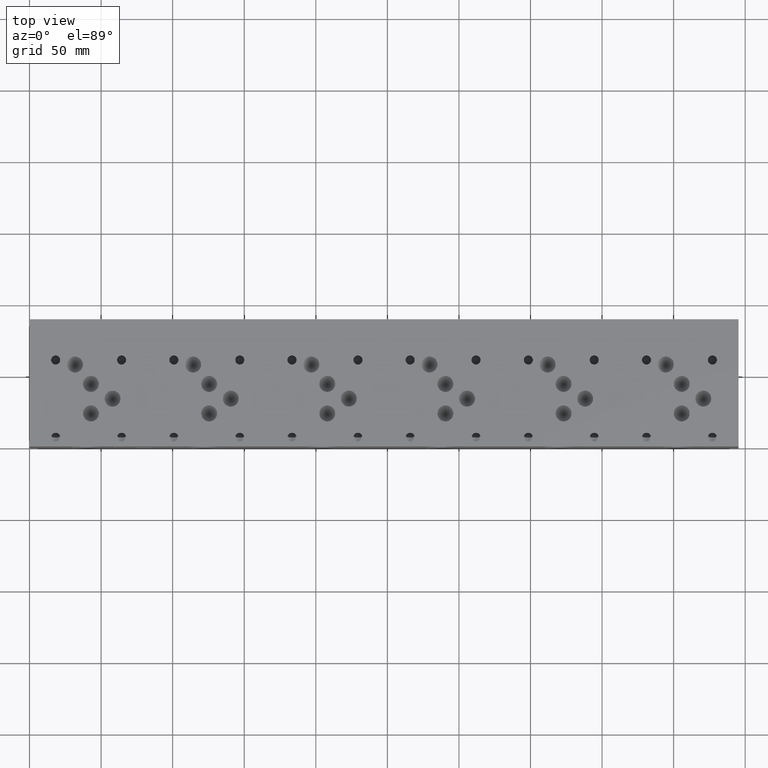
[diagram: clean part render]
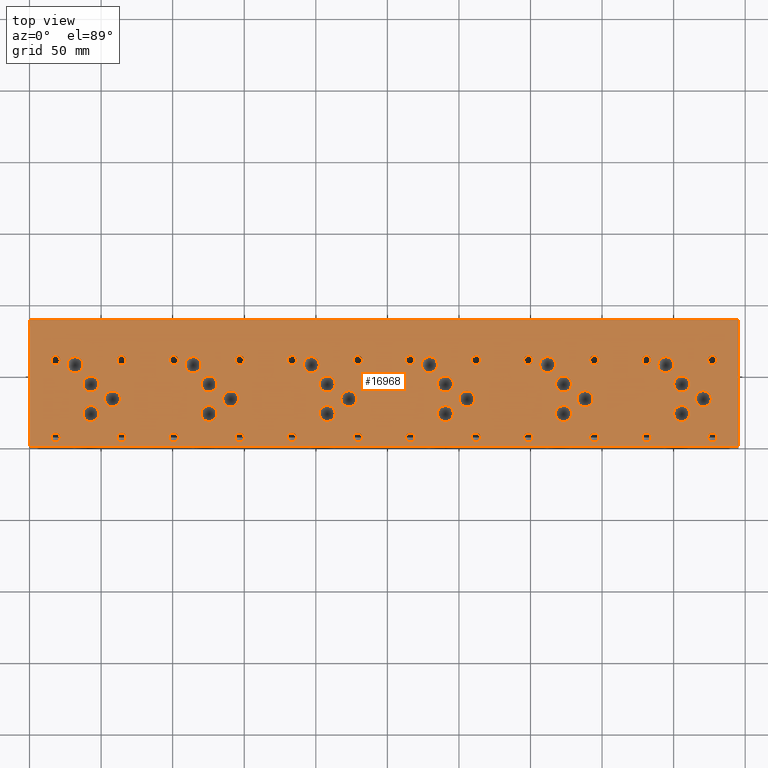
[diagram: same view with one face highlighted and labeled with its STEP entity id]
A machine part, top view. The second image highlights one B-rep face of the part: STEP entity #16968.
In plain terms, the highlighted planar face has unit normal (0, 0, 1).
Its self-contained STEP definition (entity closure, byte-faithful):
#567=CIRCLE('',#17641,5.5626);
#568=CIRCLE('',#17642,5.5626);
#571=CIRCLE('',#17647,5.5626);
#572=CIRCLE('',#17648,5.5626);
#575=CIRCLE('',#17653,5.5626);
#576=CIRCLE('',#17654,5.5626);
#579=CIRCLE('',#17659,5.5626);
#580=CIRCLE('',#17660,5.5626);
#583=CIRCLE('',#17665,5.5626);
#584=CIRCLE('',#17666,5.5626);
#587=CIRCLE('',#17671,5.5626);
#588=CIRCLE('',#17672,5.5626);
#591=CIRCLE('',#17677,5.5626);
#592=CIRCLE('',#17678,5.5626);
#595=CIRCLE('',#17683,5.5626);
#596=CIRCLE('',#17684,5.5626);
#599=CIRCLE('',#17689,5.5626);
#600=CIRCLE('',#17690,5.5626);
#603=CIRCLE('',#17695,5.5626);
#604=CIRCLE('',#17696,5.5626);
#607=CIRCLE('',#17701,5.5626);
#608=CIRCLE('',#17702,5.5626);
#611=CIRCLE('',#17707,5.5626);
#612=CIRCLE('',#17708,5.5626);
#615=CIRCLE('',#17713,5.5626);
#616=CIRCLE('',#17714,5.5626);
#619=CIRCLE('',#17719,5.5626);
#620=CIRCLE('',#17720,5.5626);
#623=CIRCLE('',#17725,5.5626);
#624=CIRCLE('',#17726,5.5626);
#627=CIRCLE('',#17731,5.5626);
#628=CIRCLE('',#17732,5.5626);
#631=CIRCLE('',#17737,5.5626);
#632=CIRCLE('',#17738,5.5626);
#635=CIRCLE('',#17743,5.5626);
#636=CIRCLE('',#17744,5.5626);
#639=CIRCLE('',#17749,5.5626);
#640=CIRCLE('',#17750,5.5626);
#643=CIRCLE('',#17755,5.5626);
#644=CIRCLE('',#17756,5.5626);
#647=CIRCLE('',#17761,5.5626);
#648=CIRCLE('',#17762,5.5626);
#651=CIRCLE('',#17767,5.5626);
#652=CIRCLE('',#17768,5.5626);
#655=CIRCLE('',#17773,5.5626);
#656=CIRCLE('',#17774,5.5626);
#659=CIRCLE('',#17779,5.5626);
#660=CIRCLE('',#17780,5.5626);
#666=CIRCLE('',#17789,3.175);
#667=CIRCLE('',#17790,3.175);
#673=CIRCLE('',#17800,3.175);
#674=CIRCLE('',#17801,3.175);
#680=CIRCLE('',#17811,3.175);
#681=CIRCLE('',#17812,3.175);
#687=CIRCLE('',#17822,3.175);
#688=CIRCLE('',#17823,3.175);
#694=CIRCLE('',#17833,3.175);
#695=CIRCLE('',#17834,3.175);
#701=CIRCLE('',#17844,3.175);
#702=CIRCLE('',#17845,3.175);
#708=CIRCLE('',#17855,3.175);
#709=CIRCLE('',#17856,3.175);
#715=CIRCLE('',#17866,3.175);
#716=CIRCLE('',#17867,3.175);
#722=CIRCLE('',#17877,3.175);
#723=CIRCLE('',#17878,3.175);
#729=CIRCLE('',#17888,3.175);
#730=CIRCLE('',#17889,3.175);
#736=CIRCLE('',#17899,3.175);
#737=CIRCLE('',#17900,3.175);
#743=CIRCLE('',#17910,3.175);
#744=CIRCLE('',#17911,3.175);
#750=CIRCLE('',#17921,3.175);
#751=CIRCLE('',#17922,3.175);
#757=CIRCLE('',#17932,3.175);
#758=CIRCLE('',#17933,3.175);
#764=CIRCLE('',#17943,3.175);
#765=CIRCLE('',#17944,3.175);
#771=CIRCLE('',#17954,3.175);
#772=CIRCLE('',#17955,3.175);
#778=CIRCLE('',#17965,3.175);
#779=CIRCLE('',#17966,3.175);
#785=CIRCLE('',#17976,3.175);
#786=CIRCLE('',#17977,3.175);
#792=CIRCLE('',#17987,3.175);
#793=CIRCLE('',#17988,3.175);
#799=CIRCLE('',#17998,3.175);
#800=CIRCLE('',#17999,3.175);
#806=CIRCLE('',#18009,3.175);
#807=CIRCLE('',#18010,3.175);
#813=CIRCLE('',#18020,3.175);
#814=CIRCLE('',#18021,3.175);
#820=CIRCLE('',#18031,3.175);
#821=CIRCLE('',#18032,3.175);
#827=CIRCLE('',#18042,3.175);
#828=CIRCLE('',#18043,3.175);
#1403=FACE_BOUND('',#3336,.T.);
#1404=FACE_BOUND('',#3337,.T.);
#1405=FACE_BOUND('',#3338,.T.);
#1406=FACE_BOUND('',#3339,.T.);
#1407=FACE_BOUND('',#3340,.T.);
#1408=FACE_BOUND('',#3341,.T.);
#1409=FACE_BOUND('',#3342,.T.);
#1410=FACE_BOUND('',#3343,.T.);
#1411=FACE_BOUND('',#3344,.T.);
#1412=FACE_BOUND('',#3345,.T.);
#1413=FACE_BOUND('',#3346,.T.);
#1414=FACE_BOUND('',#3347,.T.);
#1415=FACE_BOUND('',#3348,.T.);
#1416=FACE_BOUND('',#3349,.T.);
#1417=FACE_BOUND('',#3350,.T.);
#1418=FACE_BOUND('',#3351,.T.);
#1419=FACE_BOUND('',#3352,.T.);
#1420=FACE_BOUND('',#3353,.T.);
#1421=FACE_BOUND('',#3354,.T.);
#1422=FACE_BOUND('',#3355,.T.);
#1423=FACE_BOUND('',#3356,.T.);
#1424=FACE_BOUND('',#3357,.T.);
#1425=FACE_BOUND('',#3358,.T.);
#1426=FACE_BOUND('',#3359,.T.);
#1427=FACE_BOUND('',#3360,.T.);
#1428=FACE_BOUND('',#3361,.T.);
#1429=FACE_BOUND('',#3362,.T.);
#1430=FACE_BOUND('',#3363,.T.);
#1431=FACE_BOUND('',#3364,.T.);
#1432=FACE_BOUND('',#3365,.T.);
#1433=FACE_BOUND('',#3366,.T.);
#1434=FACE_BOUND('',#3367,.T.);
#1435=FACE_BOUND('',#3368,.T.);
#1436=FACE_BOUND('',#3369,.T.);
#1437=FACE_BOUND('',#3370,.T.);
#1438=FACE_BOUND('',#3371,.T.);
#1439=FACE_BOUND('',#3372,.T.);
#1440=FACE_BOUND('',#3373,.T.);
#1441=FACE_BOUND('',#3374,.T.);
#1442=FACE_BOUND('',#3375,.T.);
#1443=FACE_BOUND('',#3376,.T.);
#1444=FACE_BOUND('',#3377,.T.);
#1445=FACE_BOUND('',#3378,.T.);
#1446=FACE_BOUND('',#3379,.T.);
#1447=FACE_BOUND('',#3380,.T.);
#1448=FACE_BOUND('',#3381,.T.);
#1449=FACE_BOUND('',#3382,.T.);
#1450=FACE_BOUND('',#3383,.T.);
#2326=FACE_OUTER_BOUND('',#3335,.T.);
#3335=EDGE_LOOP('',(#14902,#14903,#14904,#14905));
#3336=EDGE_LOOP('',(#14906,#14907));
#3337=EDGE_LOOP('',(#14908,#14909));
#3338=EDGE_LOOP('',(#14910,#14911));
#3339=EDGE_LOOP('',(#14912,#14913));
#3340=EDGE_LOOP('',(#14914,#14915));
#3341=EDGE_LOOP('',(#14916,#14917));
#3342=EDGE_LOOP('',(#14918,#14919));
#3343=EDGE_LOOP('',(#14920,#14921));
#3344=EDGE_LOOP('',(#14922,#14923));
#3345=EDGE_LOOP('',(#14924,#14925));
#3346=EDGE_LOOP('',(#14926,#14927));
#3347=EDGE_LOOP('',(#14928,#14929));
#3348=EDGE_LOOP('',(#14930,#14931));
#3349=EDGE_LOOP('',(#14932,#14933));
#3350=EDGE_LOOP('',(#14934,#14935));
#3351=EDGE_LOOP('',(#14936,#14937));
#3352=EDGE_LOOP('',(#14938,#14939));
#3353=EDGE_LOOP('',(#14940,#14941));
#3354=EDGE_LOOP('',(#14942,#14943));
#3355=EDGE_LOOP('',(#14944,#14945));
#3356=EDGE_LOOP('',(#14946,#14947));
#3357=EDGE_LOOP('',(#14948,#14949));
#3358=EDGE_LOOP('',(#14950,#14951));
#3359=EDGE_LOOP('',(#14952,#14953));
#3360=EDGE_LOOP('',(#14954,#14955));
#3361=EDGE_LOOP('',(#14956,#14957));
#3362=EDGE_LOOP('',(#14958,#14959));
#3363=EDGE_LOOP('',(#14960,#14961));
#3364=EDGE_LOOP('',(#14962,#14963));
#3365=EDGE_LOOP('',(#14964,#14965));
#3366=EDGE_LOOP('',(#14966,#14967));
#3367=EDGE_LOOP('',(#14968,#14969));
#3368=EDGE_LOOP('',(#14970,#14971));
#3369=EDGE_LOOP('',(#14972,#14973));
#3370=EDGE_LOOP('',(#14974,#14975));
#3371=EDGE_LOOP('',(#14976,#14977));
#3372=EDGE_LOOP('',(#14978,#14979));
#3373=EDGE_LOOP('',(#14980,#14981));
#3374=EDGE_LOOP('',(#14982,#14983));
#3375=EDGE_LOOP('',(#14984,#14985));
#3376=EDGE_LOOP('',(#14986,#14987));
#3377=EDGE_LOOP('',(#14988,#14989));
#3378=EDGE_LOOP('',(#14990,#14991));
#3379=EDGE_LOOP('',(#14992,#14993));
#3380=EDGE_LOOP('',(#14994,#14995));
#3381=EDGE_LOOP('',(#14996,#14997));
#3382=EDGE_LOOP('',(#14998,#14999));
#3383=EDGE_LOOP('',(#15000,#15001));
#3420=LINE('',#21746,#4904);
#4534=LINE('',#27493,#6018);
#4594=LINE('',#27766,#6078);
#4868=LINE('',#29396,#6352);
#4904=VECTOR('',#18114,10.);
#6018=VECTOR('',#19990,10.);
#6078=VECTOR('',#20104,10.);
#6352=VECTOR('',#21662,10.);
#6377=VERTEX_POINT('',#21743);
#6378=VERTEX_POINT('',#21745);
#7422=VERTEX_POINT('',#27492);
#7480=VERTEX_POINT('',#27764);
#7686=VERTEX_POINT('',#28561);
#7687=VERTEX_POINT('',#28562);
#7691=VERTEX_POINT('',#28574);
#7692=VERTEX_POINT('',#28575);
#7696=VERTEX_POINT('',#28587);
#7697=VERTEX_POINT('',#28588);
#7701=VERTEX_POINT('',#28600);
#7702=VERTEX_POINT('',#28601);
#7706=VERTEX_POINT('',#28613);
#7707=VERTEX_POINT('',#28614);
#7711=VERTEX_POINT('',#28626);
#7712=VERTEX_POINT('',#28627);
#7716=VERTEX_POINT('',#28639);
#7717=VERTEX_POINT('',#28640);
#7721=VERTEX_POINT('',#28652);
#7722=VERTEX_POINT('',#28653);
#7726=VERTEX_POINT('',#28665);
#7727=VERTEX_POINT('',#28666);
#7731=VERTEX_POINT('',#28678);
#7732=VERTEX_POINT('',#28679);
#7736=VERTEX_POINT('',#28691);
#7737=VERTEX_POINT('',#28692);
#7741=VERTEX_POINT('',#28704);
#7742=VERTEX_POINT('',#28705);
#7746=VERTEX_POINT('',#28717);
#7747=VERTEX_POINT('',#28718);
#7751=VERTEX_POINT('',#28730);
#7752=VERTEX_POINT('',#28731);
#7756=VERTEX_POINT('',#28743);
#7757=VERTEX_POINT('',#28744);
#7761=VERTEX_POINT('',#28756);
#7762=VERTEX_POINT('',#28757);
#7766=VERTEX_POINT('',#28769);
#7767=VERTEX_POINT('',#28770);
#7771=VERTEX_POINT('',#28782);
#7772=VERTEX_POINT('',#28783);
#7776=VERTEX_POINT('',#28795);
#7777=VERTEX_POINT('',#28796);
#7781=VERTEX_POINT('',#28808);
#7782=VERTEX_POINT('',#28809);
#7786=VERTEX_POINT('',#28821);
#7787=VERTEX_POINT('',#28822);
#7791=VERTEX_POINT('',#28834);
#7792=VERTEX_POINT('',#28835);
#7796=VERTEX_POINT('',#28847);
#7797=VERTEX_POINT('',#28848);
#7801=VERTEX_POINT('',#28860);
#7802=VERTEX_POINT('',#28861);
#7809=VERTEX_POINT('',#28880);
#7810=VERTEX_POINT('',#28881);
#7817=VERTEX_POINT('',#28902);
#7818=VERTEX_POINT('',#28903);
#7825=VERTEX_POINT('',#28924);
#7826=VERTEX_POINT('',#28925);
#7833=VERTEX_POINT('',#28946);
#7834=VERTEX_POINT('',#28947);
#7841=VERTEX_POINT('',#28968);
#7842=VERTEX_POINT('',#28969);
#7849=VERTEX_POINT('',#28990);
#7850=VERTEX_POINT('',#28991);
#7857=VERTEX_POINT('',#29012);
#7858=VERTEX_POINT('',#29013);
#7865=VERTEX_POINT('',#29034);
#7866=VERTEX_POINT('',#29035);
#7873=VERTEX_POINT('',#29056);
#7874=VERTEX_POINT('',#29057);
#7881=VERTEX_POINT('',#29078);
#7882=VERTEX_POINT('',#29079);
#7889=VERTEX_POINT('',#29100);
#7890=VERTEX_POINT('',#29101);
#7897=VERTEX_POINT('',#29122);
#7898=VERTEX_POINT('',#29123);
#7905=VERTEX_POINT('',#29144);
#7906=VERTEX_POINT('',#29145);
#7913=VERTEX_POINT('',#29166);
#7914=VERTEX_POINT('',#29167);
#7921=VERTEX_POINT('',#29188);
#7922=VERTEX_POINT('',#29189);
#7929=VERTEX_POINT('',#29210);
#7930=VERTEX_POINT('',#29211);
#7937=VERTEX_POINT('',#29232);
#7938=VERTEX_POINT('',#29233);
#7945=VERTEX_POINT('',#29254);
#7946=VERTEX_POINT('',#29255);
#7953=VERTEX_POINT('',#29276);
#7954=VERTEX_POINT('',#29277);
#7961=VERTEX_POINT('',#29298);
#7962=VERTEX_POINT('',#29299);
#7969=VERTEX_POINT('',#29320);
#7970=VERTEX_POINT('',#29321);
#7977=VERTEX_POINT('',#29342);
#7978=VERTEX_POINT('',#29343);
#7985=VERTEX_POINT('',#29364);
#7986=VERTEX_POINT('',#29365);
#7993=VERTEX_POINT('',#29386);
#7994=VERTEX_POINT('',#29387);
#8030=EDGE_CURVE('',#6378,#6377,#3420,.T.);
#9574=EDGE_CURVE('',#7422,#6378,#4534,.T.);
#9658=EDGE_CURVE('',#6377,#7480,#4594,.T.);
#9949=EDGE_CURVE('',#7686,#7687,#567,.T.);
#9950=EDGE_CURVE('',#7687,#7686,#568,.T.);
#9955=EDGE_CURVE('',#7691,#7692,#571,.T.);
#9956=EDGE_CURVE('',#7692,#7691,#572,.T.);
#9961=EDGE_CURVE('',#7696,#7697,#575,.T.);
#9962=EDGE_CURVE('',#7697,#7696,#576,.T.);
#9967=EDGE_CURVE('',#7701,#7702,#579,.T.);
#9968=EDGE_CURVE('',#7702,#7701,#580,.T.);
#9973=EDGE_CURVE('',#7706,#7707,#583,.T.);
#9974=EDGE_CURVE('',#7707,#7706,#584,.T.);
#9979=EDGE_CURVE('',#7711,#7712,#587,.T.);
#9980=EDGE_CURVE('',#7712,#7711,#588,.T.);
#9985=EDGE_CURVE('',#7716,#7717,#591,.T.);
#9986=EDGE_CURVE('',#7717,#7716,#592,.T.);
#9991=EDGE_CURVE('',#7721,#7722,#595,.T.);
#9992=EDGE_CURVE('',#7722,#7721,#596,.T.);
#9997=EDGE_CURVE('',#7726,#7727,#599,.T.);
#9998=EDGE_CURVE('',#7727,#7726,#600,.T.);
#10003=EDGE_CURVE('',#7731,#7732,#603,.T.);
#10004=EDGE_CURVE('',#7732,#7731,#604,.T.);
#10009=EDGE_CURVE('',#7736,#7737,#607,.T.);
#10010=EDGE_CURVE('',#7737,#7736,#608,.T.);
#10015=EDGE_CURVE('',#7741,#7742,#611,.T.);
#10016=EDGE_CURVE('',#7742,#7741,#612,.T.);
#10021=EDGE_CURVE('',#7746,#7747,#615,.T.);
#10022=EDGE_CURVE('',#7747,#7746,#616,.T.);
#10027=EDGE_CURVE('',#7751,#7752,#619,.T.);
#10028=EDGE_CURVE('',#7752,#7751,#620,.T.);
#10033=EDGE_CURVE('',#7756,#7757,#623,.T.);
#10034=EDGE_CURVE('',#7757,#7756,#624,.T.);
#10039=EDGE_CURVE('',#7761,#7762,#627,.T.);
#10040=EDGE_CURVE('',#7762,#7761,#628,.T.);
#10045=EDGE_CURVE('',#7766,#7767,#631,.T.);
#10046=EDGE_CURVE('',#7767,#7766,#632,.T.);
#10051=EDGE_CURVE('',#7771,#7772,#635,.T.);
#10052=EDGE_CURVE('',#7772,#7771,#636,.T.);
#10057=EDGE_CURVE('',#7776,#7777,#639,.T.);
#10058=EDGE_CURVE('',#7777,#7776,#640,.T.);
#10063=EDGE_CURVE('',#7781,#7782,#643,.T.);
#10064=EDGE_CURVE('',#7782,#7781,#644,.T.);
#10069=EDGE_CURVE('',#7786,#7787,#647,.T.);
#10070=EDGE_CURVE('',#7787,#7786,#648,.T.);
#10075=EDGE_CURVE('',#7791,#7792,#651,.T.);
#10076=EDGE_CURVE('',#7792,#7791,#652,.T.);
#10081=EDGE_CURVE('',#7796,#7797,#655,.T.);
#10082=EDGE_CURVE('',#7797,#7796,#656,.T.);
#10087=EDGE_CURVE('',#7801,#7802,#659,.T.);
#10088=EDGE_CURVE('',#7802,#7801,#660,.T.);
#10096=EDGE_CURVE('',#7809,#7810,#666,.T.);
#10097=EDGE_CURVE('',#7810,#7809,#667,.T.);
#10106=EDGE_CURVE('',#7817,#7818,#673,.T.);
#10107=EDGE_CURVE('',#7818,#7817,#674,.T.);
#10116=EDGE_CURVE('',#7825,#7826,#680,.T.);
#10117=EDGE_CURVE('',#7826,#7825,#681,.T.);
#10126=EDGE_CURVE('',#7833,#7834,#687,.T.);
#10127=EDGE_CURVE('',#7834,#7833,#688,.T.);
#10136=EDGE_CURVE('',#7841,#7842,#694,.T.);
#10137=EDGE_CURVE('',#7842,#7841,#695,.T.);
#10146=EDGE_CURVE('',#7849,#7850,#701,.T.);
#10147=EDGE_CURVE('',#7850,#7849,#702,.T.);
#10156=EDGE_CURVE('',#7857,#7858,#708,.T.);
#10157=EDGE_CURVE('',#7858,#7857,#709,.T.);
#10166=EDGE_CURVE('',#7865,#7866,#715,.T.);
#10167=EDGE_CURVE('',#7866,#7865,#716,.T.);
#10176=EDGE_CURVE('',#7873,#7874,#722,.T.);
#10177=EDGE_CURVE('',#7874,#7873,#723,.T.);
#10186=EDGE_CURVE('',#7881,#7882,#729,.T.);
#10187=EDGE_CURVE('',#7882,#7881,#730,.T.);
#10196=EDGE_CURVE('',#7889,#7890,#736,.T.);
#10197=EDGE_CURVE('',#7890,#7889,#737,.T.);
#10206=EDGE_CURVE('',#7897,#7898,#743,.T.);
#10207=EDGE_CURVE('',#7898,#7897,#744,.T.);
#10216=EDGE_CURVE('',#7905,#7906,#750,.T.);
#10217=EDGE_CURVE('',#7906,#7905,#751,.T.);
#10226=EDGE_CURVE('',#7913,#7914,#757,.T.);
#10227=EDGE_CURVE('',#7914,#7913,#758,.T.);
#10236=EDGE_CURVE('',#7921,#7922,#764,.T.);
#10237=EDGE_CURVE('',#7922,#7921,#765,.T.);
#10246=EDGE_CURVE('',#7929,#7930,#771,.T.);
#10247=EDGE_CURVE('',#7930,#7929,#772,.T.);
#10256=EDGE_CURVE('',#7937,#7938,#778,.T.);
#10257=EDGE_CURVE('',#7938,#7937,#779,.T.);
#10266=EDGE_CURVE('',#7945,#7946,#785,.T.);
#10267=EDGE_CURVE('',#7946,#7945,#786,.T.);
#10276=EDGE_CURVE('',#7953,#7954,#792,.T.);
#10277=EDGE_CURVE('',#7954,#7953,#793,.T.);
#10286=EDGE_CURVE('',#7961,#7962,#799,.T.);
#10287=EDGE_CURVE('',#7962,#7961,#800,.T.);
#10296=EDGE_CURVE('',#7969,#7970,#806,.T.);
#10297=EDGE_CURVE('',#7970,#7969,#807,.T.);
#10306=EDGE_CURVE('',#7977,#7978,#813,.T.);
#10307=EDGE_CURVE('',#7978,#7977,#814,.T.);
#10316=EDGE_CURVE('',#7985,#7986,#820,.T.);
#10317=EDGE_CURVE('',#7986,#7985,#821,.T.);
#10326=EDGE_CURVE('',#7993,#7994,#827,.T.);
#10327=EDGE_CURVE('',#7994,#7993,#828,.T.);
#10331=EDGE_CURVE('',#7480,#7422,#4868,.T.);
#14902=ORIENTED_EDGE('',*,*,#8030,.T.);
#14903=ORIENTED_EDGE('',*,*,#9658,.T.);
#14904=ORIENTED_EDGE('',*,*,#10331,.T.);
#14905=ORIENTED_EDGE('',*,*,#9574,.T.);
#14906=ORIENTED_EDGE('',*,*,#9949,.T.);
#14907=ORIENTED_EDGE('',*,*,#9950,.T.);
#14908=ORIENTED_EDGE('',*,*,#9955,.T.);
#14909=ORIENTED_EDGE('',*,*,#9956,.T.);
#14910=ORIENTED_EDGE('',*,*,#9961,.T.);
#14911=ORIENTED_EDGE('',*,*,#9962,.T.);
#14912=ORIENTED_EDGE('',*,*,#9967,.T.);
#14913=ORIENTED_EDGE('',*,*,#9968,.T.);
#14914=ORIENTED_EDGE('',*,*,#9973,.T.);
#14915=ORIENTED_EDGE('',*,*,#9974,.T.);
#14916=ORIENTED_EDGE('',*,*,#9979,.T.);
#14917=ORIENTED_EDGE('',*,*,#9980,.T.);
#14918=ORIENTED_EDGE('',*,*,#9985,.T.);
#14919=ORIENTED_EDGE('',*,*,#9986,.T.);
#14920=ORIENTED_EDGE('',*,*,#9991,.T.);
#14921=ORIENTED_EDGE('',*,*,#9992,.T.);
#14922=ORIENTED_EDGE('',*,*,#9997,.T.);
#14923=ORIENTED_EDGE('',*,*,#9998,.T.);
#14924=ORIENTED_EDGE('',*,*,#10003,.T.);
#14925=ORIENTED_EDGE('',*,*,#10004,.T.);
#14926=ORIENTED_EDGE('',*,*,#10009,.T.);
#14927=ORIENTED_EDGE('',*,*,#10010,.T.);
#14928=ORIENTED_EDGE('',*,*,#10015,.T.);
#14929=ORIENTED_EDGE('',*,*,#10016,.T.);
#14930=ORIENTED_EDGE('',*,*,#10021,.T.);
#14931=ORIENTED_EDGE('',*,*,#10022,.T.);
#14932=ORIENTED_EDGE('',*,*,#10027,.T.);
#14933=ORIENTED_EDGE('',*,*,#10028,.T.);
#14934=ORIENTED_EDGE('',*,*,#10033,.T.);
#14935=ORIENTED_EDGE('',*,*,#10034,.T.);
#14936=ORIENTED_EDGE('',*,*,#10039,.T.);
#14937=ORIENTED_EDGE('',*,*,#10040,.T.);
#14938=ORIENTED_EDGE('',*,*,#10045,.T.);
#14939=ORIENTED_EDGE('',*,*,#10046,.T.);
#14940=ORIENTED_EDGE('',*,*,#10051,.T.);
#14941=ORIENTED_EDGE('',*,*,#10052,.T.);
#14942=ORIENTED_EDGE('',*,*,#10057,.T.);
#14943=ORIENTED_EDGE('',*,*,#10058,.T.);
#14944=ORIENTED_EDGE('',*,*,#10063,.T.);
#14945=ORIENTED_EDGE('',*,*,#10064,.T.);
#14946=ORIENTED_EDGE('',*,*,#10069,.T.);
#14947=ORIENTED_EDGE('',*,*,#10070,.T.);
#14948=ORIENTED_EDGE('',*,*,#10075,.T.);
#14949=ORIENTED_EDGE('',*,*,#10076,.T.);
#14950=ORIENTED_EDGE('',*,*,#10081,.T.);
#14951=ORIENTED_EDGE('',*,*,#10082,.T.);
#14952=ORIENTED_EDGE('',*,*,#10087,.T.);
#14953=ORIENTED_EDGE('',*,*,#10088,.T.);
#14954=ORIENTED_EDGE('',*,*,#10096,.T.);
#14955=ORIENTED_EDGE('',*,*,#10097,.T.);
#14956=ORIENTED_EDGE('',*,*,#10106,.T.);
#14957=ORIENTED_EDGE('',*,*,#10107,.T.);
#14958=ORIENTED_EDGE('',*,*,#10116,.T.);
#14959=ORIENTED_EDGE('',*,*,#10117,.T.);
#14960=ORIENTED_EDGE('',*,*,#10126,.T.);
#14961=ORIENTED_EDGE('',*,*,#10127,.T.);
#14962=ORIENTED_EDGE('',*,*,#10136,.T.);
#14963=ORIENTED_EDGE('',*,*,#10137,.T.);
#14964=ORIENTED_EDGE('',*,*,#10146,.T.);
#14965=ORIENTED_EDGE('',*,*,#10147,.T.);
#14966=ORIENTED_EDGE('',*,*,#10156,.T.);
#14967=ORIENTED_EDGE('',*,*,#10157,.T.);
#14968=ORIENTED_EDGE('',*,*,#10166,.T.);
#14969=ORIENTED_EDGE('',*,*,#10167,.T.);
#14970=ORIENTED_EDGE('',*,*,#10176,.T.);
#14971=ORIENTED_EDGE('',*,*,#10177,.T.);
#14972=ORIENTED_EDGE('',*,*,#10186,.T.);
#14973=ORIENTED_EDGE('',*,*,#10187,.T.);
#14974=ORIENTED_EDGE('',*,*,#10196,.T.);
#14975=ORIENTED_EDGE('',*,*,#10197,.T.);
#14976=ORIENTED_EDGE('',*,*,#10206,.T.);
#14977=ORIENTED_EDGE('',*,*,#10207,.T.);
#14978=ORIENTED_EDGE('',*,*,#10216,.T.);
#14979=ORIENTED_EDGE('',*,*,#10217,.T.);
#14980=ORIENTED_EDGE('',*,*,#10226,.T.);
#14981=ORIENTED_EDGE('',*,*,#10227,.T.);
#14982=ORIENTED_EDGE('',*,*,#10236,.T.);
#14983=ORIENTED_EDGE('',*,*,#10237,.T.);
#14984=ORIENTED_EDGE('',*,*,#10246,.T.);
#14985=ORIENTED_EDGE('',*,*,#10247,.T.);
#14986=ORIENTED_EDGE('',*,*,#10256,.T.);
#14987=ORIENTED_EDGE('',*,*,#10257,.T.);
#14988=ORIENTED_EDGE('',*,*,#10266,.T.);
#14989=ORIENTED_EDGE('',*,*,#10267,.T.);
#14990=ORIENTED_EDGE('',*,*,#10276,.T.);
#14991=ORIENTED_EDGE('',*,*,#10277,.T.);
#14992=ORIENTED_EDGE('',*,*,#10286,.T.);
#14993=ORIENTED_EDGE('',*,*,#10287,.T.);
#14994=ORIENTED_EDGE('',*,*,#10296,.T.);
#14995=ORIENTED_EDGE('',*,*,#10297,.T.);
#14996=ORIENTED_EDGE('',*,*,#10306,.T.);
#14997=ORIENTED_EDGE('',*,*,#10307,.T.);
#14998=ORIENTED_EDGE('',*,*,#10316,.T.);
#14999=ORIENTED_EDGE('',*,*,#10317,.T.);
#15000=ORIENTED_EDGE('',*,*,#10326,.T.);
#15001=ORIENTED_EDGE('',*,*,#10327,.T.);
#15477=PLANE('',#18049);
#16968=ADVANCED_FACE('',(#2326,#1403,#1404,#1405,#1406,#1407,#1408,#1409,
#1410,#1411,#1412,#1413,#1414,#1415,#1416,#1417,#1418,#1419,#1420,#1421,
#1422,#1423,#1424,#1425,#1426,#1427,#1428,#1429,#1430,#1431,#1432,#1433,
#1434,#1435,#1436,#1437,#1438,#1439,#1440,#1441,#1442,#1443,#1444,#1445,
#1446,#1447,#1448,#1449,#1450),#15477,.T.);
#17641=AXIS2_PLACEMENT_3D('',#28563,#20730,#20731);
#17642=AXIS2_PLACEMENT_3D('',#28564,#20732,#20733);
#17647=AXIS2_PLACEMENT_3D('',#28576,#20744,#20745);
#17648=AXIS2_PLACEMENT_3D('',#28577,#20746,#20747);
#17653=AXIS2_PLACEMENT_3D('',#28589,#20758,#20759);
#17654=AXIS2_PLACEMENT_3D('',#28590,#20760,#20761);
#17659=AXIS2_PLACEMENT_3D('',#28602,#20772,#20773);
#17660=AXIS2_PLACEMENT_3D('',#28603,#20774,#20775);
#17665=AXIS2_PLACEMENT_3D('',#28615,#20786,#20787);
#17666=AXIS2_PLACEMENT_3D('',#28616,#20788,#20789);
#17671=AXIS2_PLACEMENT_3D('',#28628,#20800,#20801);
#17672=AXIS2_PLACEMENT_3D('',#28629,#20802,#20803);
#17677=AXIS2_PLACEMENT_3D('',#28641,#20814,#20815);
#17678=AXIS2_PLACEMENT_3D('',#28642,#20816,#20817);
#17683=AXIS2_PLACEMENT_3D('',#28654,#20828,#20829);
#17684=AXIS2_PLACEMENT_3D('',#28655,#20830,#20831);
#17689=AXIS2_PLACEMENT_3D('',#28667,#20842,#20843);
#17690=AXIS2_PLACEMENT_3D('',#28668,#20844,#20845);
#17695=AXIS2_PLACEMENT_3D('',#28680,#20856,#20857);
#17696=AXIS2_PLACEMENT_3D('',#28681,#20858,#20859);
#17701=AXIS2_PLACEMENT_3D('',#28693,#20870,#20871);
#17702=AXIS2_PLACEMENT_3D('',#28694,#20872,#20873);
#17707=AXIS2_PLACEMENT_3D('',#28706,#20884,#20885);
#17708=AXIS2_PLACEMENT_3D('',#28707,#20886,#20887);
#17713=AXIS2_PLACEMENT_3D('',#28719,#20898,#20899);
#17714=AXIS2_PLACEMENT_3D('',#28720,#20900,#20901);
#17719=AXIS2_PLACEMENT_3D('',#28732,#20912,#20913);
#17720=AXIS2_PLACEMENT_3D('',#28733,#20914,#20915);
#17725=AXIS2_PLACEMENT_3D('',#28745,#20926,#20927);
#17726=AXIS2_PLACEMENT_3D('',#28746,#20928,#20929);
#17731=AXIS2_PLACEMENT_3D('',#28758,#20940,#20941);
#17732=AXIS2_PLACEMENT_3D('',#28759,#20942,#20943);
#17737=AXIS2_PLACEMENT_3D('',#28771,#20954,#20955);
#17738=AXIS2_PLACEMENT_3D('',#28772,#20956,#20957);
#17743=AXIS2_PLACEMENT_3D('',#28784,#20968,#20969);
#17744=AXIS2_PLACEMENT_3D('',#28785,#20970,#20971);
#17749=AXIS2_PLACEMENT_3D('',#28797,#20982,#20983);
#17750=AXIS2_PLACEMENT_3D('',#28798,#20984,#20985);
#17755=AXIS2_PLACEMENT_3D('',#28810,#20996,#20997);
#17756=AXIS2_PLACEMENT_3D('',#28811,#20998,#20999);
#17761=AXIS2_PLACEMENT_3D('',#28823,#21010,#21011);
#17762=AXIS2_PLACEMENT_3D('',#28824,#21012,#21013);
#17767=AXIS2_PLACEMENT_3D('',#28836,#21024,#21025);
#17768=AXIS2_PLACEMENT_3D('',#28837,#21026,#21027);
#17773=AXIS2_PLACEMENT_3D('',#28849,#21038,#21039);
#17774=AXIS2_PLACEMENT_3D('',#28850,#21040,#21041);
#17779=AXIS2_PLACEMENT_3D('',#28862,#21052,#21053);
#17780=AXIS2_PLACEMENT_3D('',#28863,#21054,#21055);
#17789=AXIS2_PLACEMENT_3D('',#28882,#21074,#21075);
#17790=AXIS2_PLACEMENT_3D('',#28883,#21076,#21077);
#17800=AXIS2_PLACEMENT_3D('',#28904,#21099,#21100);
#17801=AXIS2_PLACEMENT_3D('',#28905,#21101,#21102);
#17811=AXIS2_PLACEMENT_3D('',#28926,#21124,#21125);
#17812=AXIS2_PLACEMENT_3D('',#28927,#21126,#21127);
#17822=AXIS2_PLACEMENT_3D('',#28948,#21149,#21150);
#17823=AXIS2_PLACEMENT_3D('',#28949,#21151,#21152);
#17833=AXIS2_PLACEMENT_3D('',#28970,#21174,#21175);
#17834=AXIS2_PLACEMENT_3D('',#28971,#21176,#21177);
#17844=AXIS2_PLACEMENT_3D('',#28992,#21199,#21200);
#17845=AXIS2_PLACEMENT_3D('',#28993,#21201,#21202);
#17855=AXIS2_PLACEMENT_3D('',#29014,#21224,#21225);
#17856=AXIS2_PLACEMENT_3D('',#29015,#21226,#21227);
#17866=AXIS2_PLACEMENT_3D('',#29036,#21249,#21250);
#17867=AXIS2_PLACEMENT_3D('',#29037,#21251,#21252);
#17877=AXIS2_PLACEMENT_3D('',#29058,#21274,#21275);
#17878=AXIS2_PLACEMENT_3D('',#29059,#21276,#21277);
#17888=AXIS2_PLACEMENT_3D('',#29080,#21299,#21300);
#17889=AXIS2_PLACEMENT_3D('',#29081,#21301,#21302);
#17899=AXIS2_PLACEMENT_3D('',#29102,#21324,#21325);
#17900=AXIS2_PLACEMENT_3D('',#29103,#21326,#21327);
#17910=AXIS2_PLACEMENT_3D('',#29124,#21349,#21350);
#17911=AXIS2_PLACEMENT_3D('',#29125,#21351,#21352);
#17921=AXIS2_PLACEMENT_3D('',#29146,#21374,#21375);
#17922=AXIS2_PLACEMENT_3D('',#29147,#21376,#21377);
#17932=AXIS2_PLACEMENT_3D('',#29168,#21399,#21400);
#17933=AXIS2_PLACEMENT_3D('',#29169,#21401,#21402);
#17943=AXIS2_PLACEMENT_3D('',#29190,#21424,#21425);
#17944=AXIS2_PLACEMENT_3D('',#29191,#21426,#21427);
#17954=AXIS2_PLACEMENT_3D('',#29212,#21449,#21450);
#17955=AXIS2_PLACEMENT_3D('',#29213,#21451,#21452);
#17965=AXIS2_PLACEMENT_3D('',#29234,#21474,#21475);
#17966=AXIS2_PLACEMENT_3D('',#29235,#21476,#21477);
#17976=AXIS2_PLACEMENT_3D('',#29256,#21499,#21500);
#17977=AXIS2_PLACEMENT_3D('',#29257,#21501,#21502);
#17987=AXIS2_PLACEMENT_3D('',#29278,#21524,#21525);
#17988=AXIS2_PLACEMENT_3D('',#29279,#21526,#21527);
#17998=AXIS2_PLACEMENT_3D('',#29300,#21549,#21550);
#17999=AXIS2_PLACEMENT_3D('',#29301,#21551,#21552);
#18009=AXIS2_PLACEMENT_3D('',#29322,#21574,#21575);
#18010=AXIS2_PLACEMENT_3D('',#29323,#21576,#21577);
#18020=AXIS2_PLACEMENT_3D('',#29344,#21599,#21600);
#18021=AXIS2_PLACEMENT_3D('',#29345,#21601,#21602);
#18031=AXIS2_PLACEMENT_3D('',#29366,#21624,#21625);
#18032=AXIS2_PLACEMENT_3D('',#29367,#21626,#21627);
#18042=AXIS2_PLACEMENT_3D('',#29388,#21649,#21650);
#18043=AXIS2_PLACEMENT_3D('',#29389,#21651,#21652);
#18049=AXIS2_PLACEMENT_3D('',#29399,#21667,#21668);
#18114=DIRECTION('',(1.,0.,0.));
#19990=DIRECTION('',(0.,-1.,0.));
#20104=DIRECTION('',(0.,1.,0.));
#20730=DIRECTION('center_axis',(0.,0.,-1.));
#20731=DIRECTION('ref_axis',(1.,0.,0.));
#20732=DIRECTION('center_axis',(0.,0.,-1.));
#20733=DIRECTION('ref_axis',(1.,0.,0.));
#20744=DIRECTION('center_axis',(0.,0.,-1.));
#20745=DIRECTION('ref_axis',(1.,0.,0.));
#20746=DIRECTION('center_axis',(0.,0.,-1.));
#20747=DIRECTION('ref_axis',(1.,0.,0.));
#20758=DIRECTION('center_axis',(0.,0.,-1.));
#20759=DIRECTION('ref_axis',(1.,0.,0.));
#20760=DIRECTION('center_axis',(0.,0.,-1.));
#20761=DIRECTION('ref_axis',(1.,0.,0.));
#20772=DIRECTION('center_axis',(0.,0.,-1.));
#20773=DIRECTION('ref_axis',(1.,0.,0.));
#20774=DIRECTION('center_axis',(0.,0.,-1.));
#20775=DIRECTION('ref_axis',(1.,0.,0.));
#20786=DIRECTION('center_axis',(0.,0.,-1.));
#20787=DIRECTION('ref_axis',(1.,0.,0.));
#20788=DIRECTION('center_axis',(0.,0.,-1.));
#20789=DIRECTION('ref_axis',(1.,0.,0.));
#20800=DIRECTION('center_axis',(0.,0.,-1.));
#20801=DIRECTION('ref_axis',(1.,0.,0.));
#20802=DIRECTION('center_axis',(0.,0.,-1.));
#20803=DIRECTION('ref_axis',(1.,0.,0.));
#20814=DIRECTION('center_axis',(0.,0.,-1.));
#20815=DIRECTION('ref_axis',(1.,0.,0.));
#20816=DIRECTION('center_axis',(0.,0.,-1.));
#20817=DIRECTION('ref_axis',(1.,0.,0.));
#20828=DIRECTION('center_axis',(0.,0.,-1.));
#20829=DIRECTION('ref_axis',(1.,0.,0.));
#20830=DIRECTION('center_axis',(0.,0.,-1.));
#20831=DIRECTION('ref_axis',(1.,0.,0.));
#20842=DIRECTION('center_axis',(0.,0.,-1.));
#20843=DIRECTION('ref_axis',(1.,0.,0.));
#20844=DIRECTION('center_axis',(0.,0.,-1.));
#20845=DIRECTION('ref_axis',(1.,0.,0.));
#20856=DIRECTION('center_axis',(0.,0.,-1.));
#20857=DIRECTION('ref_axis',(1.,0.,0.));
#20858=DIRECTION('center_axis',(0.,0.,-1.));
#20859=DIRECTION('ref_axis',(1.,0.,0.));
#20870=DIRECTION('center_axis',(0.,0.,-1.));
#20871=DIRECTION('ref_axis',(1.,0.,0.));
#20872=DIRECTION('center_axis',(0.,0.,-1.));
#20873=DIRECTION('ref_axis',(1.,0.,0.));
#20884=DIRECTION('center_axis',(0.,0.,-1.));
#20885=DIRECTION('ref_axis',(1.,0.,0.));
#20886=DIRECTION('center_axis',(0.,0.,-1.));
#20887=DIRECTION('ref_axis',(1.,0.,0.));
#20898=DIRECTION('center_axis',(0.,0.,-1.));
#20899=DIRECTION('ref_axis',(1.,0.,0.));
#20900=DIRECTION('center_axis',(0.,0.,-1.));
#20901=DIRECTION('ref_axis',(1.,0.,0.));
#20912=DIRECTION('center_axis',(0.,0.,-1.));
#20913=DIRECTION('ref_axis',(1.,0.,0.));
#20914=DIRECTION('center_axis',(0.,0.,-1.));
#20915=DIRECTION('ref_axis',(1.,0.,0.));
#20926=DIRECTION('center_axis',(0.,0.,-1.));
#20927=DIRECTION('ref_axis',(1.,0.,0.));
#20928=DIRECTION('center_axis',(0.,0.,-1.));
#20929=DIRECTION('ref_axis',(1.,0.,0.));
#20940=DIRECTION('center_axis',(0.,0.,-1.));
#20941=DIRECTION('ref_axis',(1.,0.,0.));
#20942=DIRECTION('center_axis',(0.,0.,-1.));
#20943=DIRECTION('ref_axis',(1.,0.,0.));
#20954=DIRECTION('center_axis',(0.,0.,-1.));
#20955=DIRECTION('ref_axis',(1.,0.,0.));
#20956=DIRECTION('center_axis',(0.,0.,-1.));
#20957=DIRECTION('ref_axis',(1.,0.,0.));
#20968=DIRECTION('center_axis',(0.,0.,-1.));
#20969=DIRECTION('ref_axis',(1.,0.,0.));
#20970=DIRECTION('center_axis',(0.,0.,-1.));
#20971=DIRECTION('ref_axis',(1.,0.,0.));
#20982=DIRECTION('center_axis',(0.,0.,-1.));
#20983=DIRECTION('ref_axis',(1.,0.,0.));
#20984=DIRECTION('center_axis',(0.,0.,-1.));
#20985=DIRECTION('ref_axis',(1.,0.,0.));
#20996=DIRECTION('center_axis',(0.,0.,-1.));
#20997=DIRECTION('ref_axis',(1.,0.,0.));
#20998=DIRECTION('center_axis',(0.,0.,-1.));
#20999=DIRECTION('ref_axis',(1.,0.,0.));
#21010=DIRECTION('center_axis',(0.,0.,-1.));
#21011=DIRECTION('ref_axis',(1.,0.,0.));
#21012=DIRECTION('center_axis',(0.,0.,-1.));
#21013=DIRECTION('ref_axis',(1.,0.,0.));
#21024=DIRECTION('center_axis',(0.,0.,-1.));
#21025=DIRECTION('ref_axis',(1.,0.,0.));
#21026=DIRECTION('center_axis',(0.,0.,-1.));
#21027=DIRECTION('ref_axis',(1.,0.,0.));
#21038=DIRECTION('center_axis',(0.,0.,-1.));
#21039=DIRECTION('ref_axis',(1.,0.,0.));
#21040=DIRECTION('center_axis',(0.,0.,-1.));
#21041=DIRECTION('ref_axis',(1.,0.,0.));
#21052=DIRECTION('center_axis',(0.,0.,-1.));
#21053=DIRECTION('ref_axis',(1.,0.,0.));
#21054=DIRECTION('center_axis',(0.,0.,-1.));
#21055=DIRECTION('ref_axis',(1.,0.,0.));
#21074=DIRECTION('center_axis',(0.,0.,-1.));
#21075=DIRECTION('ref_axis',(1.,0.,0.));
#21076=DIRECTION('center_axis',(0.,0.,-1.));
#21077=DIRECTION('ref_axis',(1.,0.,0.));
#21099=DIRECTION('center_axis',(0.,0.,-1.));
#21100=DIRECTION('ref_axis',(1.,0.,0.));
#21101=DIRECTION('center_axis',(0.,0.,-1.));
#21102=DIRECTION('ref_axis',(1.,0.,0.));
#21124=DIRECTION('center_axis',(0.,0.,-1.));
#21125=DIRECTION('ref_axis',(1.,0.,0.));
#21126=DIRECTION('center_axis',(0.,0.,-1.));
#21127=DIRECTION('ref_axis',(1.,0.,0.));
#21149=DIRECTION('center_axis',(0.,0.,-1.));
#21150=DIRECTION('ref_axis',(1.,0.,0.));
#21151=DIRECTION('center_axis',(0.,0.,-1.));
#21152=DIRECTION('ref_axis',(1.,0.,0.));
#21174=DIRECTION('center_axis',(0.,0.,-1.));
#21175=DIRECTION('ref_axis',(1.,0.,0.));
#21176=DIRECTION('center_axis',(0.,0.,-1.));
#21177=DIRECTION('ref_axis',(1.,0.,0.));
#21199=DIRECTION('center_axis',(0.,0.,-1.));
#21200=DIRECTION('ref_axis',(1.,0.,0.));
#21201=DIRECTION('center_axis',(0.,0.,-1.));
#21202=DIRECTION('ref_axis',(1.,0.,0.));
#21224=DIRECTION('center_axis',(0.,0.,-1.));
#21225=DIRECTION('ref_axis',(1.,0.,0.));
#21226=DIRECTION('center_axis',(0.,0.,-1.));
#21227=DIRECTION('ref_axis',(1.,0.,0.));
#21249=DIRECTION('center_axis',(0.,0.,-1.));
#21250=DIRECTION('ref_axis',(1.,0.,0.));
#21251=DIRECTION('center_axis',(0.,0.,-1.));
#21252=DIRECTION('ref_axis',(1.,0.,0.));
#21274=DIRECTION('center_axis',(0.,0.,-1.));
#21275=DIRECTION('ref_axis',(1.,0.,0.));
#21276=DIRECTION('center_axis',(0.,0.,-1.));
#21277=DIRECTION('ref_axis',(1.,0.,0.));
#21299=DIRECTION('center_axis',(0.,0.,-1.));
#21300=DIRECTION('ref_axis',(1.,0.,0.));
#21301=DIRECTION('center_axis',(0.,0.,-1.));
#21302=DIRECTION('ref_axis',(1.,0.,0.));
#21324=DIRECTION('center_axis',(0.,0.,-1.));
#21325=DIRECTION('ref_axis',(1.,0.,0.));
#21326=DIRECTION('center_axis',(0.,0.,-1.));
#21327=DIRECTION('ref_axis',(1.,0.,0.));
#21349=DIRECTION('center_axis',(0.,0.,-1.));
#21350=DIRECTION('ref_axis',(1.,0.,0.));
#21351=DIRECTION('center_axis',(0.,0.,-1.));
#21352=DIRECTION('ref_axis',(1.,0.,0.));
#21374=DIRECTION('center_axis',(0.,0.,-1.));
#21375=DIRECTION('ref_axis',(1.,0.,0.));
#21376=DIRECTION('center_axis',(0.,0.,-1.));
#21377=DIRECTION('ref_axis',(1.,0.,0.));
#21399=DIRECTION('center_axis',(0.,0.,-1.));
#21400=DIRECTION('ref_axis',(1.,0.,0.));
#21401=DIRECTION('center_axis',(0.,0.,-1.));
#21402=DIRECTION('ref_axis',(1.,0.,0.));
#21424=DIRECTION('center_axis',(0.,0.,-1.));
#21425=DIRECTION('ref_axis',(1.,0.,0.));
#21426=DIRECTION('center_axis',(0.,0.,-1.));
#21427=DIRECTION('ref_axis',(1.,0.,0.));
#21449=DIRECTION('center_axis',(0.,0.,-1.));
#21450=DIRECTION('ref_axis',(1.,0.,0.));
#21451=DIRECTION('center_axis',(0.,0.,-1.));
#21452=DIRECTION('ref_axis',(1.,0.,0.));
#21474=DIRECTION('center_axis',(0.,0.,-1.));
#21475=DIRECTION('ref_axis',(1.,0.,0.));
#21476=DIRECTION('center_axis',(0.,0.,-1.));
#21477=DIRECTION('ref_axis',(1.,0.,0.));
#21499=DIRECTION('center_axis',(0.,0.,-1.));
#21500=DIRECTION('ref_axis',(1.,0.,0.));
#21501=DIRECTION('center_axis',(0.,0.,-1.));
#21502=DIRECTION('ref_axis',(1.,0.,0.));
#21524=DIRECTION('center_axis',(0.,0.,-1.));
#21525=DIRECTION('ref_axis',(1.,0.,0.));
#21526=DIRECTION('center_axis',(0.,0.,-1.));
#21527=DIRECTION('ref_axis',(1.,0.,0.));
#21549=DIRECTION('center_axis',(0.,0.,-1.));
#21550=DIRECTION('ref_axis',(1.,0.,0.));
#21551=DIRECTION('center_axis',(0.,0.,-1.));
#21552=DIRECTION('ref_axis',(1.,0.,0.));
#21574=DIRECTION('center_axis',(0.,0.,-1.));
#21575=DIRECTION('ref_axis',(1.,0.,0.));
#21576=DIRECTION('center_axis',(0.,0.,-1.));
#21577=DIRECTION('ref_axis',(1.,0.,0.));
#21599=DIRECTION('center_axis',(0.,0.,-1.));
#21600=DIRECTION('ref_axis',(1.,0.,0.));
#21601=DIRECTION('center_axis',(0.,0.,-1.));
#21602=DIRECTION('ref_axis',(1.,0.,0.));
#21624=DIRECTION('center_axis',(0.,0.,-1.));
#21625=DIRECTION('ref_axis',(1.,0.,0.));
#21626=DIRECTION('center_axis',(0.,0.,-1.));
#21627=DIRECTION('ref_axis',(1.,0.,0.));
#21649=DIRECTION('center_axis',(0.,0.,-1.));
#21650=DIRECTION('ref_axis',(1.,0.,0.));
#21651=DIRECTION('center_axis',(0.,0.,-1.));
#21652=DIRECTION('ref_axis',(1.,0.,0.));
#21662=DIRECTION('',(-1.,0.,0.));
#21667=DIRECTION('center_axis',(0.,0.,1.));
#21668=DIRECTION('ref_axis',(1.,0.,0.));
#21743=CARTESIAN_POINT('',(495.3,0.,88.9));
#21745=CARTESIAN_POINT('',(0.,0.,88.9));
#21746=CARTESIAN_POINT('',(0.,0.,88.9));
#27492=CARTESIAN_POINT('',(0.,88.9,88.9));
#27493=CARTESIAN_POINT('',(0.,88.9,88.9));
#27764=CARTESIAN_POINT('',(495.3,88.9,88.9));
#27766=CARTESIAN_POINT('',(495.3,0.,88.9));
#28561=CARTESIAN_POINT('',(461.1878,43.6499,88.9));
#28562=CARTESIAN_POINT('',(450.0626,43.6499,88.9));
#28563=CARTESIAN_POINT('Origin',(455.6252,43.6499,88.9));
#28564=CARTESIAN_POINT('Origin',(455.6252,43.6499,88.9));
#28574=CARTESIAN_POINT('',(476.2754,33.3629,88.9));
#28575=CARTESIAN_POINT('',(465.1502,33.3629,88.9));
#28576=CARTESIAN_POINT('Origin',(470.7128,33.3629,88.9));
#28577=CARTESIAN_POINT('Origin',(470.7128,33.3629,88.9));
#28587=CARTESIAN_POINT('',(378.6378,43.6499,88.9));
#28588=CARTESIAN_POINT('',(367.5126,43.6499,88.9));
#28589=CARTESIAN_POINT('Origin',(373.0752,43.6499,88.9));
#28590=CARTESIAN_POINT('Origin',(373.0752,43.6499,88.9));
#28600=CARTESIAN_POINT('',(393.7254,33.3629,88.9));
#28601=CARTESIAN_POINT('',(382.6002,33.3629,88.9));
#28602=CARTESIAN_POINT('Origin',(388.1628,33.3629,88.9));
#28603=CARTESIAN_POINT('Origin',(388.1628,33.3629,88.9));
#28613=CARTESIAN_POINT('',(296.0878,43.6499,88.9));
#28614=CARTESIAN_POINT('',(284.9626,43.6499,88.9));
#28615=CARTESIAN_POINT('Origin',(290.5252,43.6499,88.9));
#28616=CARTESIAN_POINT('Origin',(290.5252,43.6499,88.9));
#28626=CARTESIAN_POINT('',(311.1754,33.3375,88.9));
#28627=CARTESIAN_POINT('',(300.0502,33.3375,88.9));
#28628=CARTESIAN_POINT('Origin',(305.6128,33.3375,88.9));
#28629=CARTESIAN_POINT('Origin',(305.6128,33.3375,88.9));
#28639=CARTESIAN_POINT('',(213.5378,43.6499,88.9));
#28640=CARTESIAN_POINT('',(202.4126,43.6499,88.9));
#28641=CARTESIAN_POINT('Origin',(207.9752,43.6499,88.9));
#28642=CARTESIAN_POINT('Origin',(207.9752,43.6499,88.9));
#28652=CARTESIAN_POINT('',(228.6254,33.3629,88.9));
#28653=CARTESIAN_POINT('',(217.5002,33.3629,88.9));
#28654=CARTESIAN_POINT('Origin',(223.0628,33.3629,88.9));
#28655=CARTESIAN_POINT('Origin',(223.0628,33.3629,88.9));
#28665=CARTESIAN_POINT('',(130.9878,43.6499,88.9));
#28666=CARTESIAN_POINT('',(119.8626,43.6499,88.9));
#28667=CARTESIAN_POINT('Origin',(125.4252,43.6499,88.9));
#28668=CARTESIAN_POINT('Origin',(125.4252,43.6499,88.9));
#28678=CARTESIAN_POINT('',(146.0754,33.3375,88.9));
#28679=CARTESIAN_POINT('',(134.9502,33.3375,88.9));
#28680=CARTESIAN_POINT('Origin',(140.5128,33.3375,88.9));
#28681=CARTESIAN_POINT('Origin',(140.5128,33.3375,88.9));
#28691=CARTESIAN_POINT('',(48.4251,43.64228,88.9));
#28692=CARTESIAN_POINT('',(37.2999,43.64228,88.9));
#28693=CARTESIAN_POINT('Origin',(42.8625,43.64228,88.9));
#28694=CARTESIAN_POINT('Origin',(42.8625,43.64228,88.9));
#28704=CARTESIAN_POINT('',(63.5254,33.3248,88.9));
#28705=CARTESIAN_POINT('',(52.4002,33.3248,88.9));
#28706=CARTESIAN_POINT('Origin',(57.9628,33.3248,88.9));
#28707=CARTESIAN_POINT('Origin',(57.9628,33.3248,88.9));
#28717=CARTESIAN_POINT('',(37.3126,57.15,88.9));
#28718=CARTESIAN_POINT('',(26.1874,57.15,88.9));
#28719=CARTESIAN_POINT('Origin',(31.75,57.15,88.9));
#28720=CARTESIAN_POINT('Origin',(31.75,57.15,88.9));
#28730=CARTESIAN_POINT('',(48.43018,23.00732,88.9));
#28731=CARTESIAN_POINT('',(37.30498,23.00732,88.9));
#28732=CARTESIAN_POINT('Origin',(42.86758,23.00732,88.9));
#28733=CARTESIAN_POINT('Origin',(42.86758,23.00732,88.9));
#28743=CARTESIAN_POINT('',(119.8626,57.1627,88.9));
#28744=CARTESIAN_POINT('',(108.7374,57.1627,88.9));
#28745=CARTESIAN_POINT('Origin',(114.3,57.1627,88.9));
#28746=CARTESIAN_POINT('Origin',(114.3,57.1627,88.9));
#28756=CARTESIAN_POINT('',(130.9878,23.0251,88.9));
#28757=CARTESIAN_POINT('',(119.8626,23.0251,88.9));
#28758=CARTESIAN_POINT('Origin',(125.4252,23.0251,88.9));
#28759=CARTESIAN_POINT('Origin',(125.4252,23.0251,88.9));
#28769=CARTESIAN_POINT('',(202.4126,57.1627,88.9));
#28770=CARTESIAN_POINT('',(191.2874,57.1627,88.9));
#28771=CARTESIAN_POINT('Origin',(196.85,57.1627,88.9));
#28772=CARTESIAN_POINT('Origin',(196.85,57.1627,88.9));
#28782=CARTESIAN_POINT('',(213.5378,23.0251,88.9));
#28783=CARTESIAN_POINT('',(202.4126,23.0251,88.9));
#28784=CARTESIAN_POINT('Origin',(207.9752,23.0251,88.9));
#28785=CARTESIAN_POINT('Origin',(207.9752,23.0251,88.9));
#28795=CARTESIAN_POINT('',(284.9626,57.1627,88.9));
#28796=CARTESIAN_POINT('',(273.8374,57.1627,88.9));
#28797=CARTESIAN_POINT('Origin',(279.4,57.1627,88.9));
#28798=CARTESIAN_POINT('Origin',(279.4,57.1627,88.9));
#28808=CARTESIAN_POINT('',(296.0878,23.0251,88.9));
#28809=CARTESIAN_POINT('',(284.9626,23.0251,88.9));
#28810=CARTESIAN_POINT('Origin',(290.5252,23.0251,88.9));
#28811=CARTESIAN_POINT('Origin',(290.5252,23.0251,88.9));
#28821=CARTESIAN_POINT('',(367.5126,57.1627,88.9));
#28822=CARTESIAN_POINT('',(356.3874,57.1627,88.9));
#28823=CARTESIAN_POINT('Origin',(361.95,57.1627,88.9));
#28824=CARTESIAN_POINT('Origin',(361.95,57.1627,88.9));
#28834=CARTESIAN_POINT('',(378.6378,23.0251,88.9));
#28835=CARTESIAN_POINT('',(367.5126,23.0251,88.9));
#28836=CARTESIAN_POINT('Origin',(373.0752,23.0251,88.9));
#28837=CARTESIAN_POINT('Origin',(373.0752,23.0251,88.9));
#28847=CARTESIAN_POINT('',(450.0626,57.1627,88.9));
#28848=CARTESIAN_POINT('',(438.9374,57.1627,88.9));
#28849=CARTESIAN_POINT('Origin',(444.5,57.1627,88.9));
#28850=CARTESIAN_POINT('Origin',(444.5,57.1627,88.9));
#28860=CARTESIAN_POINT('',(461.1878,23.0251,88.9));
#28861=CARTESIAN_POINT('',(450.0626,23.0251,88.9));
#28862=CARTESIAN_POINT('Origin',(455.6252,23.0251,88.9));
#28863=CARTESIAN_POINT('Origin',(455.6252,23.0251,88.9));
#28880=CARTESIAN_POINT('',(480.2124,6.3627,88.9));
#28881=CARTESIAN_POINT('',(473.8624,6.3627,88.9));
#28882=CARTESIAN_POINT('Origin',(477.0374,6.3627,88.9));
#28883=CARTESIAN_POINT('Origin',(477.0374,6.3627,88.9));
#28902=CARTESIAN_POINT('',(434.1622,60.3377,88.9));
#28903=CARTESIAN_POINT('',(427.8122,60.3377,88.9));
#28904=CARTESIAN_POINT('Origin',(430.9872,60.3377,88.9));
#28905=CARTESIAN_POINT('Origin',(430.9872,60.3377,88.9));
#28924=CARTESIAN_POINT('',(397.6624,6.3627,88.9));
#28925=CARTESIAN_POINT('',(391.3124,6.3627,88.9));
#28926=CARTESIAN_POINT('Origin',(394.4874,6.3627,88.9));
#28927=CARTESIAN_POINT('Origin',(394.4874,6.3627,88.9));
#28946=CARTESIAN_POINT('',(351.6122,60.3377,88.9));
#28947=CARTESIAN_POINT('',(345.2622,60.3377,88.9));
#28948=CARTESIAN_POINT('Origin',(348.4372,60.3377,88.9));
#28949=CARTESIAN_POINT('Origin',(348.4372,60.3377,88.9));
#28968=CARTESIAN_POINT('',(315.1124,6.3627,88.9));
#28969=CARTESIAN_POINT('',(308.7624,6.3627,88.9));
#28970=CARTESIAN_POINT('Origin',(311.9374,6.3627,88.9));
#28971=CARTESIAN_POINT('Origin',(311.9374,6.3627,88.9));
#28990=CARTESIAN_POINT('',(269.0622,60.3377,88.9));
#28991=CARTESIAN_POINT('',(262.7122,60.3377,88.9));
#28992=CARTESIAN_POINT('Origin',(265.8872,60.3377,88.9));
#28993=CARTESIAN_POINT('Origin',(265.8872,60.3377,88.9));
#29012=CARTESIAN_POINT('',(232.5624,6.3627,88.9));
#29013=CARTESIAN_POINT('',(226.2124,6.3627,88.9));
#29014=CARTESIAN_POINT('Origin',(229.3874,6.3627,88.9));
#29015=CARTESIAN_POINT('Origin',(229.3874,6.3627,88.9));
#29034=CARTESIAN_POINT('',(186.5122,60.3377,88.9));
#29035=CARTESIAN_POINT('',(180.1622,60.3377,88.9));
#29036=CARTESIAN_POINT('Origin',(183.3372,60.3377,88.9));
#29037=CARTESIAN_POINT('Origin',(183.3372,60.3377,88.9));
#29056=CARTESIAN_POINT('',(150.0124,6.3627,88.9));
#29057=CARTESIAN_POINT('',(143.6624,6.3627,88.9));
#29058=CARTESIAN_POINT('Origin',(146.8374,6.3627,88.9));
#29059=CARTESIAN_POINT('Origin',(146.8374,6.3627,88.9));
#29078=CARTESIAN_POINT('',(103.9622,60.3377,88.9));
#29079=CARTESIAN_POINT('',(97.6122,60.3377,88.9));
#29080=CARTESIAN_POINT('Origin',(100.7872,60.3377,88.9));
#29081=CARTESIAN_POINT('Origin',(100.7872,60.3377,88.9));
#29100=CARTESIAN_POINT('',(67.4624,6.3627,88.9));
#29101=CARTESIAN_POINT('',(61.1124,6.3627,88.9));
#29102=CARTESIAN_POINT('Origin',(64.2874,6.3627,88.9));
#29103=CARTESIAN_POINT('Origin',(64.2874,6.3627,88.9));
#29122=CARTESIAN_POINT('',(21.4122,60.325,88.9));
#29123=CARTESIAN_POINT('',(15.0622,60.325,88.9));
#29124=CARTESIAN_POINT('Origin',(18.2372,60.325,88.9));
#29125=CARTESIAN_POINT('Origin',(18.2372,60.325,88.9));
#29144=CARTESIAN_POINT('',(67.4624,60.325,88.9));
#29145=CARTESIAN_POINT('',(61.1124,60.325,88.9));
#29146=CARTESIAN_POINT('Origin',(64.2874,60.325,88.9));
#29147=CARTESIAN_POINT('Origin',(64.2874,60.325,88.9));
#29166=CARTESIAN_POINT('',(21.4122,6.35,88.9));
#29167=CARTESIAN_POINT('',(15.0622,6.35,88.9));
#29168=CARTESIAN_POINT('Origin',(18.2372,6.35,88.9));
#29169=CARTESIAN_POINT('Origin',(18.2372,6.35,88.9));
#29188=CARTESIAN_POINT('',(150.0124,60.3377,88.9));
#29189=CARTESIAN_POINT('',(143.6624,60.3377,88.9));
#29190=CARTESIAN_POINT('Origin',(146.8374,60.3377,88.9));
#29191=CARTESIAN_POINT('Origin',(146.8374,60.3377,88.9));
#29210=CARTESIAN_POINT('',(103.9622,6.3627,88.9));
#29211=CARTESIAN_POINT('',(97.6122,6.3627,88.9));
#29212=CARTESIAN_POINT('Origin',(100.7872,6.3627,88.9));
#29213=CARTESIAN_POINT('Origin',(100.7872,6.3627,88.9));
#29232=CARTESIAN_POINT('',(232.5624,60.3377,88.9));
#29233=CARTESIAN_POINT('',(226.2124,60.3377,88.9));
#29234=CARTESIAN_POINT('Origin',(229.3874,60.3377,88.9));
#29235=CARTESIAN_POINT('Origin',(229.3874,60.3377,88.9));
#29254=CARTESIAN_POINT('',(186.5122,6.3627,88.9));
#29255=CARTESIAN_POINT('',(180.1622,6.3627,88.9));
#29256=CARTESIAN_POINT('Origin',(183.3372,6.3627,88.9));
#29257=CARTESIAN_POINT('Origin',(183.3372,6.3627,88.9));
#29276=CARTESIAN_POINT('',(315.1124,60.3377,88.9));
#29277=CARTESIAN_POINT('',(308.7624,60.3377,88.9));
#29278=CARTESIAN_POINT('Origin',(311.9374,60.3377,88.9));
#29279=CARTESIAN_POINT('Origin',(311.9374,60.3377,88.9));
#29298=CARTESIAN_POINT('',(269.0622,6.3627,88.9));
#29299=CARTESIAN_POINT('',(262.7122,6.3627,88.9));
#29300=CARTESIAN_POINT('Origin',(265.8872,6.3627,88.9));
#29301=CARTESIAN_POINT('Origin',(265.8872,6.3627,88.9));
#29320=CARTESIAN_POINT('',(397.6624,60.3377,88.9));
#29321=CARTESIAN_POINT('',(391.3124,60.3377,88.9));
#29322=CARTESIAN_POINT('Origin',(394.4874,60.3377,88.9));
#29323=CARTESIAN_POINT('Origin',(394.4874,60.3377,88.9));
#29342=CARTESIAN_POINT('',(351.6122,6.3627,88.9));
#29343=CARTESIAN_POINT('',(345.2622,6.3627,88.9));
#29344=CARTESIAN_POINT('Origin',(348.4372,6.3627,88.9));
#29345=CARTESIAN_POINT('Origin',(348.4372,6.3627,88.9));
#29364=CARTESIAN_POINT('',(480.2124,60.3377,88.9));
#29365=CARTESIAN_POINT('',(473.8624,60.3377,88.9));
#29366=CARTESIAN_POINT('Origin',(477.0374,60.3377,88.9));
#29367=CARTESIAN_POINT('Origin',(477.0374,60.3377,88.9));
#29386=CARTESIAN_POINT('',(434.1622,6.3627,88.9));
#29387=CARTESIAN_POINT('',(427.8122,6.3627,88.9));
#29388=CARTESIAN_POINT('Origin',(430.9872,6.3627,88.9));
#29389=CARTESIAN_POINT('Origin',(430.9872,6.3627,88.9));
#29396=CARTESIAN_POINT('',(495.3,88.9,88.9));
#29399=CARTESIAN_POINT('Origin',(247.65,44.45,88.9));